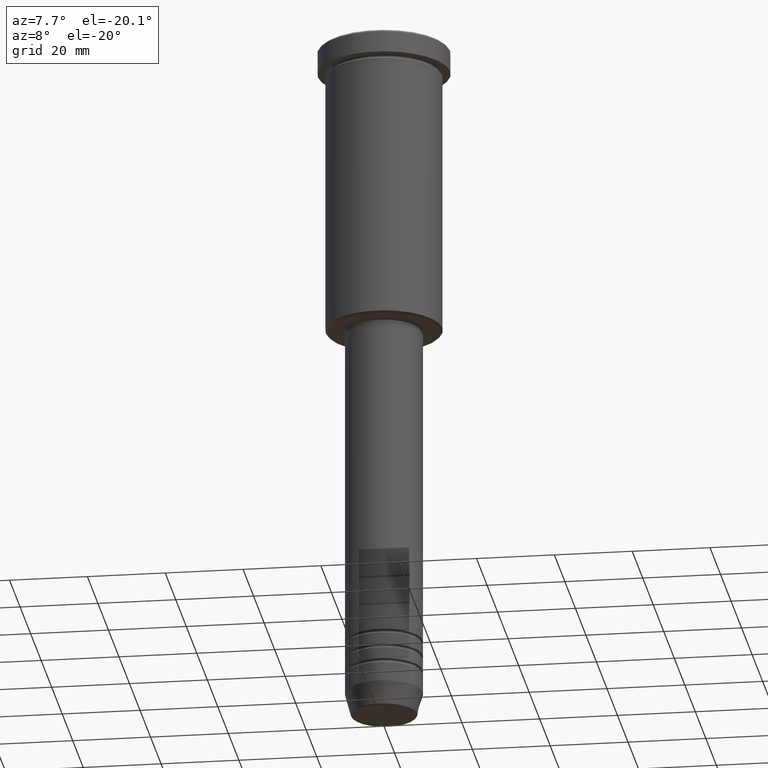
[diagram: clean part render]
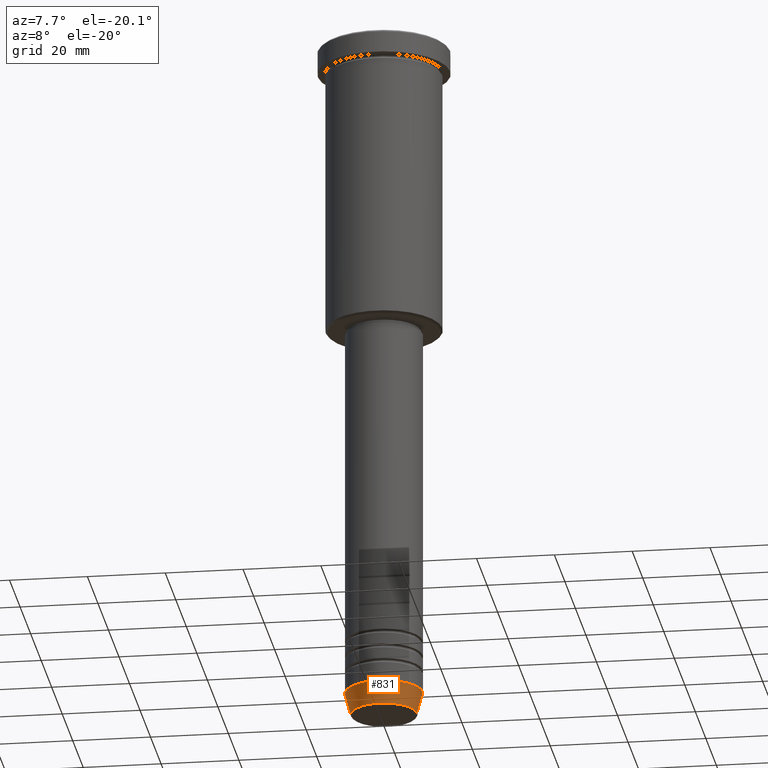
[diagram: same view with one face highlighted and labeled with its STEP entity id]
A machine part, auxiliary view. The second image highlights one B-rep face of the part: STEP entity #831.
In plain terms, the highlighted conical surface has half-angle 15 deg.
Its self-contained STEP definition (entity closure, byte-faithful):
#17 = ORIENTED_EDGE ( 'NONE', *, *, #940, .T. ) ;
#84 = AXIS2_PLACEMENT_3D ( 'NONE', #999, #796, #441 ) ;
#100 = VECTOR ( 'NONE', #486, 1000.000000000000000 ) ;
#129 = CARTESIAN_POINT ( 'NONE',  ( -10.00000000000000178, 1.224646799147353454E-15, -174.0000000000000284 ) ) ;
#154 = EDGE_LOOP ( 'NONE', ( #849, #961, #17, #1060 ) ) ;
#251 = CARTESIAN_POINT ( 'NONE',  ( 10.00000000000000178, 0.000000000000000000, -174.0000000000000284 ) ) ;
#296 = DIRECTION ( 'NONE',  ( 1.000000000000000000, 0.000000000000000000, 0.000000000000000000 ) ) ;
#304 = EDGE_CURVE ( 'NONE', #397, #1061, #417, .T. ) ;
#331 = LINE ( 'NONE', #1073, #703 ) ;
#382 = CONICAL_SURFACE ( 'NONE', #1038, 10.00000000000000178, 0.2617993877991501850 ) ;
#396 = CARTESIAN_POINT ( 'NONE',  ( 8.491604264568326954, 0.000000000000000000, -179.6294095225512422 ) ) ;
#397 = VERTEX_POINT ( 'NONE', #944 ) ;
#417 = CIRCLE ( 'NONE', #739, 10.00000000000000178 ) ;
#441 = DIRECTION ( 'NONE',  ( 1.000000000000000000, 0.000000000000000000, 0.000000000000000000 ) ) ;
#458 = VERTEX_POINT ( 'NONE', #396 ) ;
#482 = CARTESIAN_POINT ( 'NONE',  ( 0.000000000000000000, 0.000000000000000000, -174.0000000000000284 ) ) ;
#486 = DIRECTION ( 'NONE',  ( -0.2588190451025214611, 3.169619151431773569E-17, 0.9659258262890680902 ) ) ;
#547 = EDGE_CURVE ( 'NONE', #735, #397, #1150, .T. ) ;
#557 = DIRECTION ( 'NONE',  ( -0.000000000000000000, -0.000000000000000000, 1.000000000000000000 ) ) ;
#658 = FACE_OUTER_BOUND ( 'NONE', #154, .T. ) ;
#663 = CARTESIAN_POINT ( 'NONE',  ( 0.000000000000000000, 0.000000000000000000, -174.0000000000000284 ) ) ;
#703 = VECTOR ( 'NONE', #974, 1000.000000000000000 ) ;
#706 = CIRCLE ( 'NONE', #84, 8.491604264568326954 ) ;
#735 = VERTEX_POINT ( 'NONE', #904 ) ;
#739 = AXIS2_PLACEMENT_3D ( 'NONE', #482, #557, #296 ) ;
#796 = DIRECTION ( 'NONE',  ( -0.000000000000000000, -0.000000000000000000, 1.000000000000000000 ) ) ;
#831 = ADVANCED_FACE ( 'NONE', ( #658 ), #382, .T. ) ;
#849 = ORIENTED_EDGE ( 'NONE', *, *, #547, .F. ) ;
#853 = DIRECTION ( 'NONE',  ( -0.000000000000000000, -0.000000000000000000, 1.000000000000000000 ) ) ;
#904 = CARTESIAN_POINT ( 'NONE',  ( -8.491604264568326954, 1.132284198685157767E-15, -179.6294095225512422 ) ) ;
#940 = EDGE_CURVE ( 'NONE', #458, #1061, #331, .T. ) ;
#944 = CARTESIAN_POINT ( 'NONE',  ( -10.00000000000000178, 1.224646799147353454E-15, -174.0000000000000284 ) ) ;
#961 = ORIENTED_EDGE ( 'NONE', *, *, #1174, .T. ) ;
#974 = DIRECTION ( 'NONE',  ( 0.2588190451025214611, 0.000000000000000000, 0.9659258262890680902 ) ) ;
#999 = CARTESIAN_POINT ( 'NONE',  ( 0.000000000000000000, 0.000000000000000000, -179.6294095225512422 ) ) ;
#1032 = DIRECTION ( 'NONE',  ( 1.000000000000000000, 0.000000000000000000, 0.000000000000000000 ) ) ;
#1038 = AXIS2_PLACEMENT_3D ( 'NONE', #663, #853, #1032 ) ;
#1060 = ORIENTED_EDGE ( 'NONE', *, *, #304, .F. ) ;
#1061 = VERTEX_POINT ( 'NONE', #251 ) ;
#1073 = CARTESIAN_POINT ( 'NONE',  ( 10.00000000000000178, 0.000000000000000000, -174.0000000000000284 ) ) ;
#1150 = LINE ( 'NONE', #129, #100 ) ;
#1174 = EDGE_CURVE ( 'NONE', #735, #458, #706, .T. ) ;